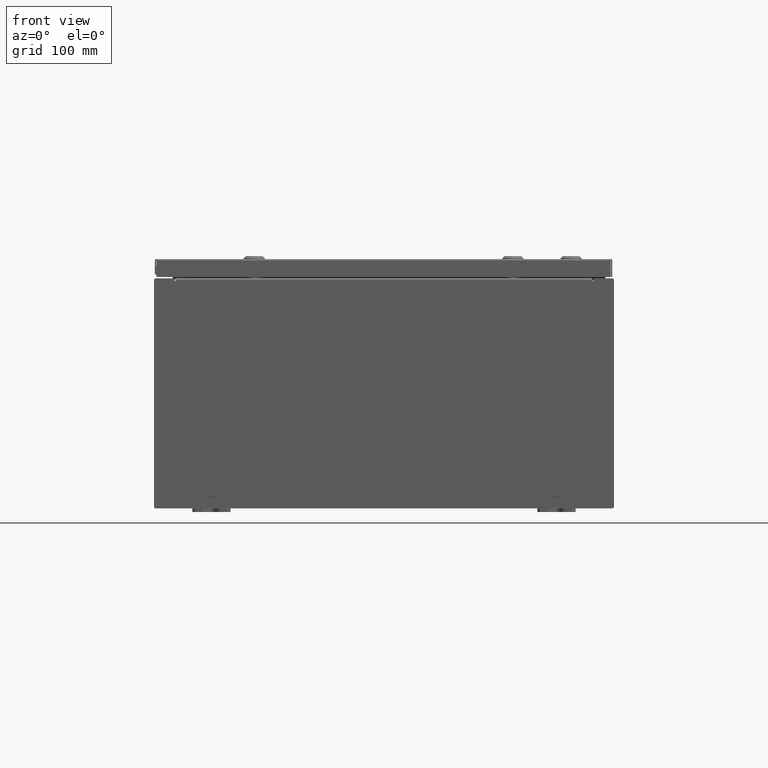
[diagram: clean part render]
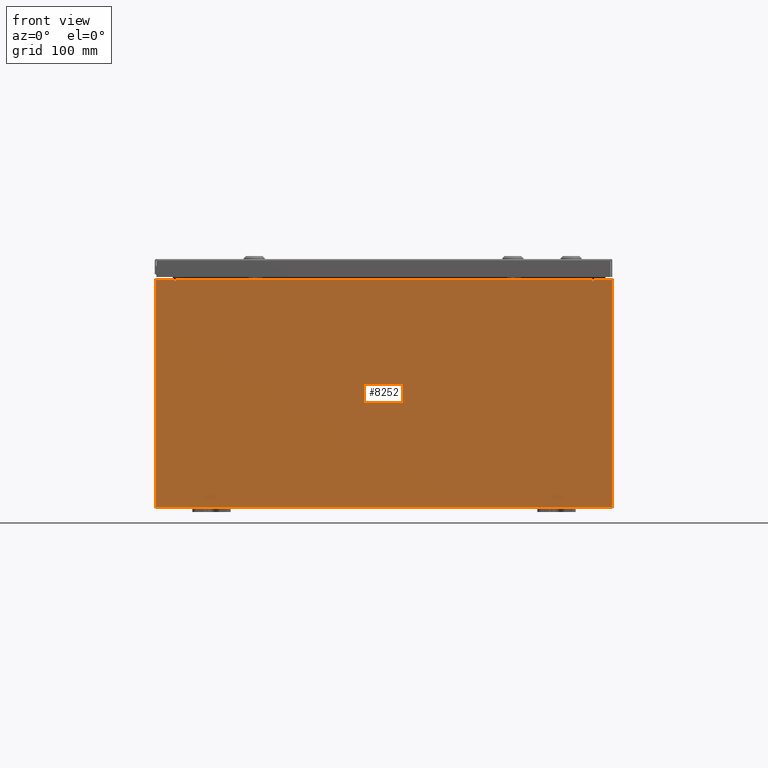
[diagram: same view with one face highlighted and labeled with its STEP entity id]
A machine part, front view. The second image highlights one B-rep face of the part: STEP entity #8252.
In plain terms, the highlighted planar face has unit normal (-0, 1, -0).
Its self-contained STEP definition (entity closure, byte-faithful):
#189 = CARTESIAN_POINT ( 'NONE',  ( -10.92454999999999800, 0.0000000000000000000, 5.874950000000001000 ) ) ;
#548 = DIRECTION ( 'NONE',  ( -0.0000000000000000000, -0.0000000000000000000, 1.000000000000000000 ) ) ;
#1585 = LINE ( 'NONE', #46478, #3117 ) ;
#1641 = EDGE_CURVE ( 'NONE', #57682, #54786, #46152, .T. ) ;
#1755 = LINE ( 'NONE', #6126, #21627 ) ;
#2316 = VECTOR ( 'NONE', #548, 39.37007874015748100 ) ;
#2558 = DIRECTION ( 'NONE',  ( 1.000000000000000000, 0.0000000000000000000, 0.0000000000000000000 ) ) ;
#3117 = VECTOR ( 'NONE', #17091, 39.37007874015748100 ) ;
#3201 = EDGE_CURVE ( 'NONE', #15881, #57682, #13937, .T. ) ;
#3248 = DIRECTION ( 'NONE',  ( 0.0000000000000000000, -0.0000000000000000000, -1.000000000000000000 ) ) ;
#3688 = DIRECTION ( 'NONE',  ( 0.0000000000000000000, -1.000000000000000000, 0.0000000000000000000 ) ) ;
#4111 = PLANE ( 'NONE',  #45821 ) ;
#5372 = CARTESIAN_POINT ( 'NONE',  ( -10.88720000000000000, -1.707404996040164500E-016, 5.912300000000001000 ) ) ;
#6126 = CARTESIAN_POINT ( 'NONE',  ( -11.92530000000000000, 0.0000000000000000000, -5.925299999999999100 ) ) ;
#6963 = VECTOR ( 'NONE', #29214, 39.37007874015748100 ) ;
#7830 = ORIENTED_EDGE ( 'NONE', *, *, #50787, .F. ) ;
#8252 = ADVANCED_FACE ( 'NONE', ( #12098 ), #4111, .F. ) ;
#8351 = CIRCLE ( 'NONE', #25400, 0.01867499999999949400 ) ;
#8768 = VECTOR ( 'NONE', #25568, 39.37007874015748100 ) ;
#9510 = VECTOR ( 'NONE', #63514, 39.37007874015748100 ) ;
#9916 = ORIENTED_EDGE ( 'NONE', *, *, #1641, .F. ) ;
#10064 = LINE ( 'NONE', #24222, #6963 ) ;
#10550 = DIRECTION ( 'NONE',  ( 0.0000000000000000000, 0.0000000000000000000, -1.000000000000000000 ) ) ;
#11016 = LINE ( 'NONE', #48712, #9510 ) ;
#11041 = DIRECTION ( 'NONE',  ( -1.000000000000000000, -0.0000000000000000000, -0.0000000000000000000 ) ) ;
#11443 = DIRECTION ( 'NONE',  ( -0.0000000000000000000, 1.000000000000000000, -0.0000000000000000000 ) ) ;
#12098 = FACE_OUTER_BOUND ( 'NONE', #17631, .T. ) ;
#12377 = CARTESIAN_POINT ( 'NONE',  ( 0.0000000000000000000, 0.0000000000000000000, 0.0000000000000000000 ) ) ;
#12428 = VERTEX_POINT ( 'NONE', #61156 ) ;
#12576 = VECTOR ( 'NONE', #2558, 39.37007874015748100 ) ;
#13937 = CIRCLE ( 'NONE', #53071, 0.01867499999999949400 ) ;
#14636 = EDGE_CURVE ( 'NONE', #12428, #15824, #10064, .T. ) ;
#15824 = VERTEX_POINT ( 'NONE', #52753 ) ;
#15840 = ORIENTED_EDGE ( 'NONE', *, *, #53854, .F. ) ;
#15881 = VERTEX_POINT ( 'NONE', #28545 ) ;
#17091 = DIRECTION ( 'NONE',  ( 0.0000000000000000000, 0.0000000000000000000, -1.000000000000000000 ) ) ;
#17564 = CARTESIAN_POINT ( 'NONE',  ( -10.90587500000000000, 0.0000000000000000000, 5.874950000000001000 ) ) ;
#17631 = EDGE_LOOP ( 'NONE', ( #9916, #19202, #7830, #50371, #49589, #32104, #15840, #19147, #38352, #61140, #34141, #20666 ) ) ;
#17788 = VECTOR ( 'NONE', #24050, 39.37007874015748100 ) ;
#19140 = CARTESIAN_POINT ( 'NONE',  ( 10.92455000000000000, 0.0000000000000000000, 0.0000000000000000000 ) ) ;
#19147 = ORIENTED_EDGE ( 'NONE', *, *, #37027, .T. ) ;
#19202 = ORIENTED_EDGE ( 'NONE', *, *, #3201, .F. ) ;
#20286 = CARTESIAN_POINT ( 'NONE',  ( 10.92455000000000000, 0.0000000000000000000, 5.925300000000001800 ) ) ;
#20666 = ORIENTED_EDGE ( 'NONE', *, *, #51797, .T. ) ;
#21434 = CARTESIAN_POINT ( 'NONE',  ( -11.92530000000000000, 0.0000000000000000000, -5.925299999999999100 ) ) ;
#21627 = VECTOR ( 'NONE', #11041, 39.37007874015748100 ) ;
#24050 = DIRECTION ( 'NONE',  ( 0.0000000000000000000, 0.0000000000000000000, -1.000000000000000000 ) ) ;
#24222 = CARTESIAN_POINT ( 'NONE',  ( 11.92530000000000000, 0.0000000000000000000, 5.925300000000001800 ) ) ;
#25189 = CARTESIAN_POINT ( 'NONE',  ( -10.92454999999999800, 0.0000000000000000000, 5.925300000000000000 ) ) ;
#25400 = AXIS2_PLACEMENT_3D ( 'NONE', #40806, #11443, #45743 ) ;
#25568 = DIRECTION ( 'NONE',  ( 0.0000000000000000000, 0.0000000000000000000, 1.000000000000000000 ) ) ;
#27952 = EDGE_CURVE ( 'NONE', #43907, #42874, #47897, .T. ) ;
#28231 = EDGE_CURVE ( 'NONE', #52534, #42874, #63204, .T. ) ;
#28417 = LINE ( 'NONE', #40168, #2316 ) ;
#28545 = CARTESIAN_POINT ( 'NONE',  ( -10.88720000000000000, -0.0000000000000000000, 5.874950000000001000 ) ) ;
#29214 = DIRECTION ( 'NONE',  ( 0.0000000000000000000, 0.0000000000000000000, -1.000000000000000000 ) ) ;
#30852 = LINE ( 'NONE', #19140, #17788 ) ;
#31348 = CARTESIAN_POINT ( 'NONE',  ( -10.92454999999999800, -0.0000000000000000000, 0.0000000000000000000 ) ) ;
#32104 = ORIENTED_EDGE ( 'NONE', *, *, #34699, .F. ) ;
#33390 = DIRECTION ( 'NONE',  ( -0.0000000000000000000, 1.000000000000000000, -0.0000000000000000000 ) ) ;
#34141 = ORIENTED_EDGE ( 'NONE', *, *, #56509, .T. ) ;
#34699 = EDGE_CURVE ( 'NONE', #59600, #43907, #8351, .T. ) ;
#36331 = VERTEX_POINT ( 'NONE', #20286 ) ;
#36828 = CARTESIAN_POINT ( 'NONE',  ( -10.88720000000000200, -1.707404996040164500E-016, 5.912300000000001000 ) ) ;
#37027 = EDGE_CURVE ( 'NONE', #36331, #12428, #39652, .T. ) ;
#38352 = ORIENTED_EDGE ( 'NONE', *, *, #14636, .T. ) ;
#39652 = LINE ( 'NONE', #49571, #51149 ) ;
#40041 = VERTEX_POINT ( 'NONE', #52889 ) ;
#40168 = CARTESIAN_POINT ( 'NONE',  ( -11.92530000000000000, 0.0000000000000000000, 5.925300000000000000 ) ) ;
#40806 = CARTESIAN_POINT ( 'NONE',  ( 10.90587500000000200, 0.0000000000000000000, 5.874950000000001000 ) ) ;
#42874 = VERTEX_POINT ( 'NONE', #62654 ) ;
#43094 = VECTOR ( 'NONE', #50198, 39.37007874015748100 ) ;
#43907 = VERTEX_POINT ( 'NONE', #50117 ) ;
#45743 = DIRECTION ( 'NONE',  ( 0.0000000000000000000, 0.0000000000000000000, -1.000000000000000000 ) ) ;
#45821 = AXIS2_PLACEMENT_3D ( 'NONE', #12377, #3688, #3248 ) ;
#46152 = LINE ( 'NONE', #31348, #43094 ) ;
#46478 = CARTESIAN_POINT ( 'NONE',  ( -10.88720000000000000, -0.0000000000000000000, 0.0000000000000000000 ) ) ;
#47897 = LINE ( 'NONE', #59441, #8768 ) ;
#48073 = CARTESIAN_POINT ( 'NONE',  ( 10.92455000000000000, 0.0000000000000000000, 5.874950000000001000 ) ) ;
#48132 = EDGE_CURVE ( 'NONE', #15824, #53509, #1755, .T. ) ;
#48712 = CARTESIAN_POINT ( 'NONE',  ( -11.92530000000000000, 0.0000000000000000000, 5.925300000000000000 ) ) ;
#49571 = CARTESIAN_POINT ( 'NONE',  ( -11.92530000000000000, 0.0000000000000000000, 5.925300000000000000 ) ) ;
#49589 = ORIENTED_EDGE ( 'NONE', *, *, #27952, .F. ) ;
#50117 = CARTESIAN_POINT ( 'NONE',  ( 10.88720000000000200, 0.0000000000000000000, 5.874950000000001000 ) ) ;
#50198 = DIRECTION ( 'NONE',  ( 0.0000000000000000000, 0.0000000000000000000, 1.000000000000000000 ) ) ;
#50371 = ORIENTED_EDGE ( 'NONE', *, *, #28231, .T. ) ;
#50787 = EDGE_CURVE ( 'NONE', #52534, #15881, #1585, .T. ) ;
#51149 = VECTOR ( 'NONE', #60052, 39.37007874015748100 ) ;
#51797 = EDGE_CURVE ( 'NONE', #40041, #54786, #11016, .T. ) ;
#52534 = VERTEX_POINT ( 'NONE', #5372 ) ;
#52753 = CARTESIAN_POINT ( 'NONE',  ( 11.92530000000000000, 0.0000000000000000000, -5.925299999999999100 ) ) ;
#52889 = CARTESIAN_POINT ( 'NONE',  ( -11.92530000000000000, 0.0000000000000000000, 5.925300000000000000 ) ) ;
#53071 = AXIS2_PLACEMENT_3D ( 'NONE', #17564, #33390, #10550 ) ;
#53509 = VERTEX_POINT ( 'NONE', #21434 ) ;
#53854 = EDGE_CURVE ( 'NONE', #36331, #59600, #30852, .T. ) ;
#54786 = VERTEX_POINT ( 'NONE', #25189 ) ;
#56509 = EDGE_CURVE ( 'NONE', #53509, #40041, #28417, .T. ) ;
#57682 = VERTEX_POINT ( 'NONE', #189 ) ;
#59441 = CARTESIAN_POINT ( 'NONE',  ( 10.88720000000000200, 0.0000000000000000000, 0.0000000000000000000 ) ) ;
#59600 = VERTEX_POINT ( 'NONE', #48073 ) ;
#60052 = DIRECTION ( 'NONE',  ( 1.000000000000000000, 0.0000000000000000000, 4.581600452255731000E-017 ) ) ;
#61140 = ORIENTED_EDGE ( 'NONE', *, *, #48132, .T. ) ;
#61156 = CARTESIAN_POINT ( 'NONE',  ( 11.92530000000000000, 0.0000000000000000000, 5.925300000000001800 ) ) ;
#62654 = CARTESIAN_POINT ( 'NONE',  ( 10.88720000000000200, 0.0000000000000000000, 5.912300000000001000 ) ) ;
#63204 = LINE ( 'NONE', #36828, #12576 ) ;
#63514 = DIRECTION ( 'NONE',  ( 1.000000000000000000, 0.0000000000000000000, 4.581600452255731000E-017 ) ) ;